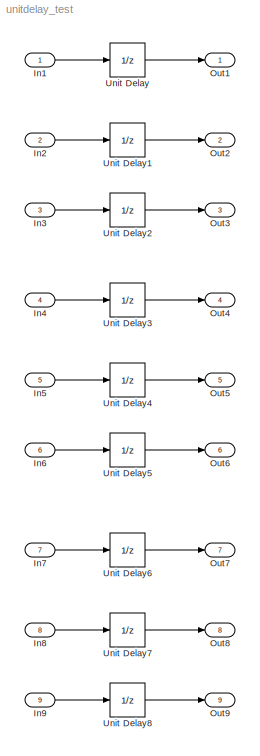
MODEL unitdelay_test
KIND model
BLOCK [Inport] In1
  IconDisplay = Port number
  OutDataTypeStr = double
  PortDimensions = 1
  SID = 1
BLOCK [Inport] In2
  IconDisplay = Port number
  OutDataTypeStr = double
  Port = 2
  PortDimensions = 1
  SID = 2
BLOCK [Inport] In3
  IconDisplay = Port number
  Port = 3
  PortDimensions = 1
  SID = 3
BLOCK [Inport] In4
  IconDisplay = Port number
  OutDataTypeStr = int8
  Port = 4
  PortDimensions = 1
  SID = 4
BLOCK [Inport] In5
  IconDisplay = Port number
  OutDataTypeStr = int8
  Port = 5
  PortDimensions = 1
  SID = 5
BLOCK [Inport] In6
  IconDisplay = Port number
  OutDataTypeStr = int8
  Port = 6
  PortDimensions = 1
  SID = 6
BLOCK [Inport] In7
  IconDisplay = Port number
  OutDataTypeStr = boolean
  Port = 7
  PortDimensions = 1
  SID = 7
BLOCK [Inport] In8
  IconDisplay = Port number
  OutDataTypeStr = boolean
  Port = 8
  PortDimensions = 1
  SID = 8
BLOCK [Inport] In9
  IconDisplay = Port number
  OutDataTypeStr = boolean
  Port = 9
  PortDimensions = 1
  SID = 9
BLOCK [Outport] Out1
  IconDisplay = Port number
  SID = 19
BLOCK [Outport] Out2
  IconDisplay = Port number
  Port = 2
  SID = 20
BLOCK [Outport] Out3
  IconDisplay = Port number
  Port = 3
  SID = 21
BLOCK [Outport] Out4
  IconDisplay = Port number
  Port = 4
  SID = 22
BLOCK [Outport] Out5
  IconDisplay = Port number
  Port = 5
  SID = 23
BLOCK [Outport] Out6
  IconDisplay = Port number
  Port = 6
  SID = 24
BLOCK [Outport] Out7
  IconDisplay = Port number
  Port = 7
  SID = 25
BLOCK [Outport] Out8
  IconDisplay = Port number
  Port = 8
  SID = 26
BLOCK [Outport] Out9
  IconDisplay = Port number
  Port = 9
  SID = 27
BLOCK [UnitDelay] Unit Delay
  SID = 10
BLOCK [UnitDelay] Unit Delay1
  InitialCondition = 0.0
  SID = 11
BLOCK [UnitDelay] Unit Delay2
  InitialCondition = true
  SID = 12
BLOCK [UnitDelay] Unit Delay3
  SID = 13
BLOCK [UnitDelay] Unit Delay4
  InitialCondition = 0.0
  SID = 14
BLOCK [UnitDelay] Unit Delay5
  InitialCondition = true
  SID = 15
BLOCK [UnitDelay] Unit Delay6
  SID = 16
BLOCK [UnitDelay] Unit Delay7
  InitialCondition = 0.0
  SID = 17
BLOCK [UnitDelay] Unit Delay8
  InitialCondition = true
  SID = 18
LINE In1:1 -> Unit Delay:1
LINE In2:1 -> Unit Delay1:1
LINE In3:1 -> Unit Delay2:1
LINE In4:1 -> Unit Delay3:1
LINE In5:1 -> Unit Delay4:1
LINE In6:1 -> Unit Delay5:1
LINE In7:1 -> Unit Delay6:1
LINE In8:1 -> Unit Delay7:1
LINE In9:1 -> Unit Delay8:1
LINE Unit Delay1:1 -> Out2:1
LINE Unit Delay2:1 -> Out3:1
LINE Unit Delay3:1 -> Out4:1
LINE Unit Delay4:1 -> Out5:1
LINE Unit Delay5:1 -> Out6:1
LINE Unit Delay6:1 -> Out7:1
LINE Unit Delay7:1 -> Out8:1
LINE Unit Delay8:1 -> Out9:1
LINE Unit Delay:1 -> Out1:1
